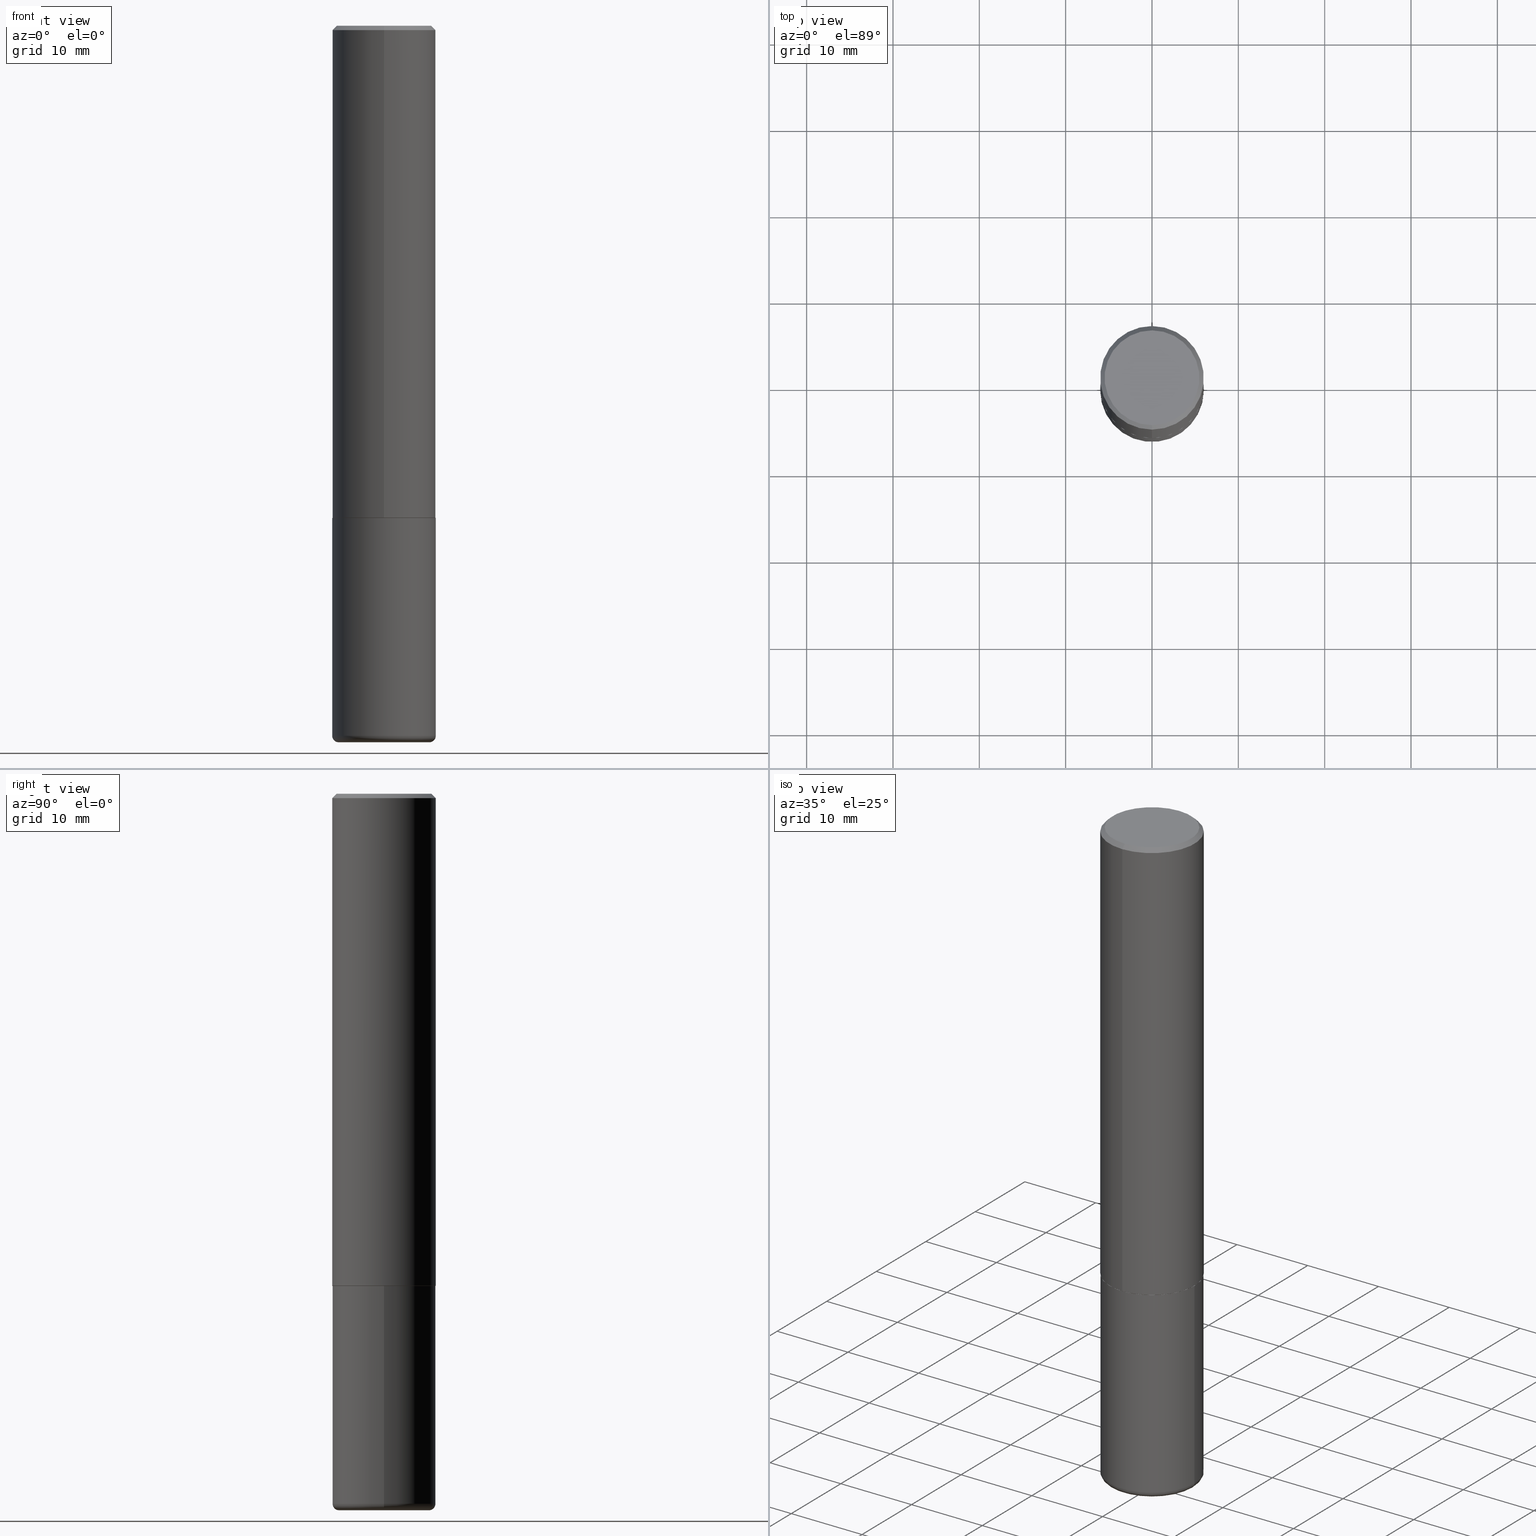
[diagram: canonical four-view strip — front | top / right | iso, engineering-drawing reading convention]
A machine part, canonical four-view strip (front | top / right | iso — engineering-drawing reading convention). The complete STEP part file that produces these views, byte-faithful:
ISO-10303-21;
HEADER;
FILE_DESCRIPTION (( 'STEP AP203' ),
    '1' );
FILE_NAME ('47162.STEP',
    '2024-03-06T00:16:44',
    ( '' ),
    ( '' ),
    'SwSTEP 2.0',
    'SolidWorks 2023',
    '' );
FILE_SCHEMA (( 'CONFIG_CONTROL_DESIGN' ));
ENDSEC;

DATA;
#1 = EDGE_LOOP ( 'NONE', ( #388, #287, #348, #351 ) ) ;
#2 = PERSON_AND_ORGANIZATION ( #316, #331 ) ;
#3 = DIRECTION ( 'NONE',  ( -2.445468806185136877E-29, 3.491481338843145188E-15, 1.000000000000000000 ) ) ;
#4 = CALENDAR_DATE ( 2024, 5, 3 ) ;
#5 = DIRECTION ( 'NONE',  ( -2.443198551934710321E-29, 3.494732472144603410E-15, 1.000000000000000000 ) ) ;
#6 = DATE_AND_TIME ( #36, #353 ) ;
#7 = LINE ( 'NONE', #108, #51 ) ;
#8 = CIRCLE ( 'NONE', #176, 0.2062000000000000222 ) ;
#9 = APPLICATION_CONTEXT ( 'configuration controlled 3d designs of mechanical parts and assemblies' ) ;
#10 = DATE_AND_TIME ( #4, #299 ) ;
#11 = CARTESIAN_POINT ( 'NONE',  ( 5.482781870396684000E-29, -7.842529140739704038E-15, -2.244100000000000428 ) ) ;
#12 = PERSON_AND_ORGANIZATION ( #316, #331 ) ;
#13 = CARTESIAN_POINT ( 'NONE',  ( 1.678301941865357380E-15, 0.2362000000000001321, -8.254558099205557624E-16 ) ) ;
#14 = EDGE_CURVE ( 'NONE', #25, #315, #73, .T. ) ;
#15 = DIRECTION ( 'NONE',  ( -4.937700262164969294E-15, -0.7071067811866054154, 0.7071067811864896191 ) ) ;
#16 = CC_DESIGN_PERSON_AND_ORGANIZATION_ASSIGNMENT ( #12, #295, ( #153 ) ) ;
#17 = LOCAL_TIME ( 19, 16, 44.00000000000000000, #156 ) ;
#18 = CARTESIAN_POINT ( 'NONE',  ( -0.2362000000000000766, -7.891499259769821311E-15, -2.244100000000000428 ) ) ;
#19 = CARTESIAN_POINT ( 'NONE',  ( 1.671196514507810409E-15, 0.2351999999999921653, -2.244100000000000872 ) ) ;
#20 = APPROVAL ( #356, 'UNSPECIFIED' ) ;
#21 = LINE ( 'NONE', #19, #382 ) ;
#22 = CARTESIAN_POINT ( 'NONE',  ( 5.487876547960065873E-29, -7.835233272497903917E-15, -2.244100000000000428 ) ) ;
#23 = AXIS2_PLACEMENT_3D ( 'NONE', #317, #31, #290 ) ;
#24 = PERSON_AND_ORGANIZATION ( #316, #331 ) ;
#25 = VERTEX_POINT ( 'NONE', #231 ) ;
#26 = EDGE_CURVE ( 'NONE', #291, #218, #333, .T. ) ;
#27 = ORIENTED_EDGE ( 'NONE', *, *, #327, .T. ) ;
#28 = CIRCLE ( 'NONE', #305, 0.2362000000000002709 ) ;
#29 = VECTOR ( 'NONE', #15, 39.37007874015748143 ) ;
#30 = ORIENTED_EDGE ( 'NONE', *, *, #40, .T. ) ;
#31 = DIRECTION ( 'NONE',  ( 0.000000000000000000, 0.000000000000000000, 1.000000000000000000 ) ) ;
#32 = ORIENTED_EDGE ( 'NONE', *, *, #161, .T. ) ;
#33 = EDGE_LOOP ( 'NONE', ( #215, #166, #321, #165 ) ) ;
#34 = CIRCLE ( 'NONE', #407, 0.2361999999999999933 ) ;
#35 = CC_DESIGN_APPROVAL ( #88, ( #313 ) ) ;
#36 = CALENDAR_DATE ( 2024, 5, 3 ) ;
#37 = DIRECTION ( 'NONE',  ( 1.000000000000000000, -6.982962677686265133E-15, 4.883557194083111780E-29 ) ) ;
#38 = DIRECTION ( 'NONE',  ( -2.443198551934710321E-29, 3.494732472144603410E-15, 1.000000000000000000 ) ) ;
#39 = CYLINDRICAL_SURFACE ( 'NONE', #304, 0.2362000000000001321 ) ;
#40 = EDGE_CURVE ( 'NONE', #198, #291, #175, .T. ) ;
#41 = DIRECTION ( 'NONE',  ( 7.105427357601001859E-15, 1.000000000000000000, -3.491481338843145583E-15 ) ) ;
#42 = EDGE_CURVE ( 'NONE', #349, #291, #345, .T. ) ;
#43 = LINE ( 'NONE', #13, #90 ) ;
#44 = DIRECTION ( 'NONE',  ( 1.000000000000000000, -6.982962677686265133E-15, 4.883557194083111780E-29 ) ) ;
#45 = AXIS2_PLACEMENT_3D ( 'NONE', #93, #191, #360 ) ;
#46 = CYLINDRICAL_SURFACE ( 'NONE', #260, 0.2361999999999999933 ) ;
#47 = EDGE_CURVE ( 'NONE', #315, #411, #43, .T. ) ;
#48 = DIRECTION ( 'NONE',  ( -2.443198551934710321E-29, 3.494732472144603016E-15, 1.000000000000000000 ) ) ;
#49 = CARTESIAN_POINT ( 'NONE',  ( 1.678301941865385582E-15, 0.2361999999999924160, -2.243100000000000982 ) ) ;
#50 =( NAMED_UNIT ( * ) PLANE_ANGLE_UNIT ( ) SI_UNIT ( $, .RADIAN. ) );
#51 = VECTOR ( 'NONE', #268, 39.37007874015748143 ) ;
#52 = ORIENTED_EDGE ( 'NONE', *, *, #130, .F. ) ;
#53 = CARTESIAN_POINT ( 'NONE',  ( 1.509716530915772690E-15, 0.2162000000000002808, -9.024733938762408486E-16 ) ) ;
#54 = ADVANCED_FACE ( 'NONE', ( #238 ), #134, .T. ) ;
#55 = ORIENTED_EDGE ( 'NONE', *, *, #14, .F. ) ;
#56 = DIRECTION ( 'NONE',  ( -1.000000000000000000, 6.982962677686265922E-15, -4.876176775795935793E-29 ) ) ;
#57 = EDGE_LOOP ( 'NONE', ( #255, #52 ) ) ;
#58 = LENGTH_MEASURE_WITH_UNIT ( LENGTH_MEASURE( 0.02539999999999999897 ), #350 );
#59 = EDGE_LOOP ( 'NONE', ( #323, #344, #416, #95 ) ) ;
#60 = CIRCLE ( 'NONE', #234, 0.2362000000000000210 ) ;
#61 = APPROVAL_PERSON_ORGANIZATION ( #330, #74, #137 ) ;
#62 = PERSON_AND_ORGANIZATION ( #316, #331 ) ;
#63 = EDGE_LOOP ( 'NONE', ( #335, #64, #381, #129 ) ) ;
#64 = ORIENTED_EDGE ( 'NONE', *, *, #26, .T. ) ;
#65 = CARTESIAN_POINT ( 'NONE',  ( -0.2062000000000000222, -9.839230009635125344E-15, -3.237700000000000244 ) ) ;
#66 = CIRCLE ( 'NONE', #127, 0.2062000000000000222 ) ;
#67 = VECTOR ( 'NONE', #123, 39.37007874015748143 ) ;
#68 = CYLINDRICAL_SURFACE ( 'NONE', #292, 0.2362000000000001321 ) ;
#69 = ADVANCED_FACE ( 'NONE', ( #205 ), #225, .T. ) ;
#70 = APPROVAL_STATUS ( 'not_yet_approved' ) ;
#71 = FACE_OUTER_BOUND ( 'NONE', #160, .T. ) ;
#72 = CARTESIAN_POINT ( 'NONE',  ( 7.917694353785617077E-29, -1.130436913077245307E-14, -3.237700000000000244 ) ) ;
#73 = CIRCLE ( 'NONE', #45, 0.2362000000000002709 ) ;
#74 = APPROVAL ( #70, 'UNSPECIFIED' ) ;
#75 = TOROIDAL_SURFACE ( 'NONE', #149, 0.2062000000000000222, 0.03000000000000024175 ) ;
#76 = DIRECTION ( 'NONE',  ( 6.982962677686265922E-15, 1.000000000000000000, -3.487819265831411744E-15 ) ) ;
#77 = CARTESIAN_POINT ( 'NONE',  ( 7.991058417971172834E-29, -1.140911357093774960E-14, -3.267700000000000937 ) ) ;
#78 = DESIGN_CONTEXT ( 'detailed design', #178, 'design' ) ;
#79 = DIRECTION ( 'NONE',  ( -2.445468806185136597E-29, 3.491481338843145583E-15, 1.000000000000000000 ) ) ;
#80 = AXIS2_PLACEMENT_3D ( 'NONE', #120, #150, #184 ) ;
#81 = DIRECTION ( 'NONE',  ( 1.000000000000000000, -6.982962677686266711E-15, 4.876176775795936353E-29 ) ) ;
#82 = EDGE_CURVE ( 'NONE', #291, #349, #34, .T. ) ;
#83 = ORIENTED_EDGE ( 'NONE', *, *, #102, .T. ) ;
#84 = ADVANCED_BREP_SHAPE_REPRESENTATION ( '47162', ( #116, #122, #23 ), #98 ) ;
#85 = LINE ( 'NONE', #303, #376 ) ;
#86 = ADVANCED_FACE ( 'NONE', ( #364 ), #310, .T. ) ;
#87 = DIRECTION ( 'NONE',  ( -1.000000000000000000, 6.982962677686265922E-15, -4.876176775795935793E-29 ) ) ;
#88 = APPROVAL ( #254, 'UNSPECIFIED' ) ;
#89 = CALENDAR_DATE ( 2024, 5, 3 ) ;
#90 = VECTOR ( 'NONE', #142, 39.37007874015748143 ) ;
#91 = ORIENTED_EDGE ( 'NONE', *, *, #358, .T. ) ;
#92 = DATE_AND_TIME ( #256, #17 ) ;
#93 = CARTESIAN_POINT ( 'NONE',  ( 5.480338671844748839E-29, -7.839034408267561952E-15, -2.243100000000000094 ) ) ;
#94 = DIRECTION ( 'NONE',  ( -6.982962677686266711E-15, -1.000000000000000000, 3.491481338843145583E-15 ) ) ;
#95 = ORIENTED_EDGE ( 'NONE', *, *, #82, .F. ) ;
#96 = CARTESIAN_POINT ( 'NONE',  ( 1.649375784469496525E-15, 0.2361999999999999378, -0.02000000000000091288 ) ) ;
#97 = ORIENTED_EDGE ( 'NONE', *, *, #47, .F. ) ;
#98 =( GEOMETRIC_REPRESENTATION_CONTEXT ( 3 ) GLOBAL_UNCERTAINTY_ASSIGNED_CONTEXT ( ( #253 ) ) GLOBAL_UNIT_ASSIGNED_CONTEXT ( ( #412, #50, #192 ) ) REPRESENTATION_CONTEXT ( 'NONE', 'WORKASPACE' ) );
#99 = FACE_OUTER_BOUND ( 'NONE', #324, .T. ) ;
#100 = VERTEX_POINT ( 'NONE', #177 ) ;
#101 = DIRECTION ( 'NONE',  ( -2.443198551934710321E-29, 3.494732472144603410E-15, 1.000000000000000000 ) ) ;
#102 = EDGE_CURVE ( 'NONE', #374, #218, #367, .T. ) ;
#103 = DIRECTION ( 'NONE',  ( -6.982962677686265922E-15, -1.000000000000000000, 3.484499991918702719E-15 ) ) ;
#104 = AXIS2_PLACEMENT_3D ( 'NONE', #270, #237, #76 ) ;
#105 = LOCAL_TIME ( 19, 16, 44.00000000000000000, #195 ) ;
#106 = PRODUCT_DEFINITION_SHAPE ( 'NONE', 'NONE',  #313 ) ;
#107 = DATE_AND_TIME ( #271, #206 ) ;
#108 = CARTESIAN_POINT ( 'NONE',  ( -1.620449627073635079E-15, -0.2362000000000000766, -0.01999999999999926489 ) ) ;
#109 = FACE_OUTER_BOUND ( 'NONE', #227, .T. ) ;
#110 = EDGE_CURVE ( 'NONE', #100, #285, #148, .T. ) ;
#111 = PERSON_AND_ORGANIZATION ( #316, #331 ) ;
#112 = AXIS2_PLACEMENT_3D ( 'NONE', #263, #393, #37 ) ;
#113 = CIRCLE ( 'NONE', #226, 0.2162000000000002808 ) ;
#114 = DIRECTION ( 'NONE',  ( -2.443198551934710321E-29, 3.494732472144603410E-15, 1.000000000000000000 ) ) ;
#115 = FACE_OUTER_BOUND ( 'NONE', #289, .T. ) ;
#116 = MANIFOLD_SOLID_BREP ( 'Body-Move/Copy2[1]', #213 ) ;
#117 = ADVANCED_FACE ( 'NONE', ( #71 ), #39, .T. ) ;
#118 = DIRECTION ( 'NONE',  ( -2.443198551934710321E-29, 3.494732472144603410E-15, 1.000000000000000000 ) ) ;
#119 = AXIS2_PLACEMENT_3D ( 'NONE', #53, #322, #229 ) ;
#120 = CARTESIAN_POINT ( 'NONE',  ( 4.886397103869442398E-31, -6.989464944289237832E-17, -0.02000000000000009062 ) ) ;
#121 = ORIENTED_EDGE ( 'NONE', *, *, #167, .F. ) ;
#122 = MANIFOLD_SOLID_BREP ( 'Body-Move/Copy2[2]', #414 ) ;
#123 = DIRECTION ( 'NONE',  ( -2.443198551934710321E-29, 3.494732472144603016E-15, 1.000000000000000000 ) ) ;
#124 = PRODUCT_RELATED_PRODUCT_CATEGORY ( 'detail', '', ( #273 ) ) ;
#125 = DIRECTION ( 'NONE',  ( -2.443198551934710321E-29, 3.494732472144603410E-15, 1.000000000000000000 ) ) ;
#126 = ORIENTED_EDGE ( 'NONE', *, *, #236, .T. ) ;
#127 = AXIS2_PLACEMENT_3D ( 'NONE', #272, #332, #400 ) ;
#128 = CIRCLE ( 'NONE', #136, 0.2361999999999999933 ) ;
#129 = ORIENTED_EDGE ( 'NONE', *, *, #300, .F. ) ;
#130 = EDGE_CURVE ( 'NONE', #198, #341, #66, .T. ) ;
#131 = ORIENTED_EDGE ( 'NONE', *, *, #14, .T. ) ;
#132 = APPROVAL_ROLE ( '' ) ;
#133 = EDGE_LOOP ( 'NONE', ( #131, #257, #418, #384 ) ) ;
#134 = CONICAL_SURFACE ( 'NONE', #182, 0.2352000000000000202, 0.7853981633975336552 ) ;
#135 = ORIENTED_EDGE ( 'NONE', *, *, #110, .F. ) ;
#136 = AXIS2_PLACEMENT_3D ( 'NONE', #417, #125, #380 ) ;
#137 = APPROVAL_ROLE ( '' ) ;
#138 = DIRECTION ( 'NONE',  ( -2.445468806185136597E-29, 3.491481338843145583E-15, 1.000000000000000000 ) ) ;
#139 = EDGE_CURVE ( 'NONE', #163, #194, #401, .T. ) ;
#140 = APPROVAL_DATE_TIME ( #10, #74 ) ;
#141 = CARTESIAN_POINT ( 'NONE',  ( 7.917694353785617077E-29, -1.130436913077245307E-14, -3.237700000000000244 ) ) ;
#142 = DIRECTION ( 'NONE',  ( -2.443198551934710321E-29, 3.494732472144603016E-15, 1.000000000000000000 ) ) ;
#143 = AXIS2_PLACEMENT_3D ( 'NONE', #309, #279, #379 ) ;
#144 = DIRECTION ( 'NONE',  ( 4.937700262164537787E-15, 0.7071067811865436870, -0.7071067811865513475 ) ) ;
#145 = PERSON_AND_ORGANIZATION_ROLE ( 'design_supplier' ) ;
#146 = DIRECTION ( 'NONE',  ( -2.445468806185136597E-29, 3.491481338843145583E-15, 1.000000000000000000 ) ) ;
#147 = CARTESIAN_POINT ( 'NONE',  ( 5.482781870396684000E-29, -7.842529140739704038E-15, -2.244100000000000428 ) ) ;
#148 = CIRCLE ( 'NONE', #394, 0.2352000000000000202 ) ;
#149 = AXIS2_PLACEMENT_3D ( 'NONE', #72, #183, #44 ) ;
#150 = DIRECTION ( 'NONE',  ( -2.443198551934710321E-29, 3.494732472144603410E-15, 1.000000000000000000 ) ) ;
#151 = CARTESIAN_POINT ( 'NONE',  ( -1.649375784469496920E-15, -0.2362000000000001321, 8.254558099205557624E-16 ) ) ;
#152 = CARTESIAN_POINT ( 'NONE',  ( -1.620449627073635079E-15, -0.2362000000000000766, -0.01999999999999926489 ) ) ;
#153 = PRODUCT_DEFINITION_FORMATION_WITH_SPECIFIED_SOURCE ( 'ANY', '', #273, .NOT_KNOWN. ) ;
#154 = CARTESIAN_POINT ( 'NONE',  ( 0.2062000000000000222, -1.284900047507665623E-14, -3.267700000000000937 ) ) ;
#155 = ADVANCED_FACE ( 'NONE', ( #202 ), #68, .T. ) ;
#156 = COORDINATED_UNIVERSAL_TIME_OFFSET ( 5, 0, .BEHIND. ) ;
#157 = ORIENTED_EDGE ( 'NONE', *, *, #378, .F. ) ;
#158 = CARTESIAN_POINT ( 'NONE',  ( 0.2062000000000000222, -1.274425603491136128E-14, -3.237700000000000244 ) ) ;
#159 = APPROVAL_PERSON_ORGANIZATION ( #359, #20, #199 ) ;
#160 = EDGE_LOOP ( 'NONE', ( #97, #371, #357, #157 ) ) ;
#161 = EDGE_CURVE ( 'NONE', #194, #249, #7, .T. ) ;
#162 = DIRECTION ( 'NONE',  ( -6.982962677686265922E-15, -1.000000000000000000, 3.484499991918702719E-15 ) ) ;
#163 = VERTEX_POINT ( 'NONE', #399 ) ;
#164 = PERSON_AND_ORGANIZATION ( #316, #331 ) ;
#165 = ORIENTED_EDGE ( 'NONE', *, *, #378, .T. ) ;
#166 = ORIENTED_EDGE ( 'NONE', *, *, #139, .F. ) ;
#167 = EDGE_CURVE ( 'NONE', #163, #411, #174, .T. ) ;
#168 = AXIS2_PLACEMENT_3D ( 'NONE', #340, #334, #214 ) ;
#169 = COORDINATED_UNIVERSAL_TIME_OFFSET ( 5, 0, .BEHIND. ) ;
#170 = CARTESIAN_POINT ( 'NONE',  ( 5.487876547960065873E-29, -7.835233272497903917E-15, -2.244100000000000428 ) ) ;
#171 = APPROVAL_DATE_TIME ( #107, #20 ) ;
#172 = DIRECTION ( 'NONE',  ( -2.445468806185136597E-29, 3.491481338843145583E-15, 1.000000000000000000 ) ) ;
#173 = SECURITY_CLASSIFICATION_LEVEL ( 'unclassified' ) ;
#174 = LINE ( 'NONE', #298, #396 ) ;
#175 = CIRCLE ( 'NONE', #361, 0.03000000000000025910 ) ;
#176 = AXIS2_PLACEMENT_3D ( 'NONE', #77, #308, #370 ) ;
#177 = CARTESIAN_POINT ( 'NONE',  ( 1.674749228186611702E-15, 0.2351999999999921653, -2.244100000000000872 ) ) ;
#178 = APPLICATION_CONTEXT ( 'configuration controlled 3d designs of mechanical parts and assemblies' ) ;
#179 = DIRECTION ( 'NONE',  ( -6.982962677686265922E-15, -1.000000000000000000, 3.494732472144603016E-15 ) ) ;
#180 = DIRECTION ( 'NONE',  ( -6.982962677686265922E-15, -1.000000000000000000, 3.469747663417773058E-15 ) ) ;
#181 = ADVANCED_FACE ( 'NONE', ( #109 ), #75, .T. ) ;
#182 = AXIS2_PLACEMENT_3D ( 'NONE', #11, #201, #103 ) ;
#183 = DIRECTION ( 'NONE',  ( -2.445468806185136597E-29, 3.491481338843145583E-15, 1.000000000000000000 ) ) ;
#184 = DIRECTION ( 'NONE',  ( -6.982962677686265922E-15, -1.000000000000000000, 3.487819265831411744E-15 ) ) ;
#185 = EDGE_CURVE ( 'NONE', #194, #163, #113, .T. ) ;
#186 = DIRECTION ( 'NONE',  ( -2.445468806185136877E-29, 3.491481338843145188E-15, 1.000000000000000000 ) ) ;
#187 = AXIS2_PLACEMENT_3D ( 'NONE', #141, #138, #369 ) ;
#188 = ORIENTED_EDGE ( 'NONE', *, *, #250, .F. ) ;
#189 = EDGE_LOOP ( 'NONE', ( #252, #390, #318, #188 ) ) ;
#190 = APPLICATION_PROTOCOL_DEFINITION ( 'international standard', 'config_control_design', 1994, #9 ) ;
#191 = DIRECTION ( 'NONE',  ( -2.443198551934710321E-29, 3.494732472144603410E-15, 1.000000000000000000 ) ) ;
#192 =( NAMED_UNIT ( * ) SI_UNIT ( $, .STERADIAN. ) SOLID_ANGLE_UNIT ( ) );
#193 = AXIS2_PLACEMENT_3D ( 'NONE', #242, #373, #87 ) ;
#194 = VERTEX_POINT ( 'NONE', #336 ) ;
#195 = COORDINATED_UNIVERSAL_TIME_OFFSET ( 5, 0, .BEHIND. ) ;
#196 = ORIENTED_EDGE ( 'NONE', *, *, #391, .F. ) ;
#197 = CC_DESIGN_PERSON_AND_ORGANIZATION_ASSIGNMENT ( #2, #145, ( #153 ) ) ;
#198 = VERTEX_POINT ( 'NONE', #377 ) ;
#199 = APPROVAL_ROLE ( '' ) ;
#200 = VECTOR ( 'NONE', #3, 39.37007874015748143 ) ;
#201 = DIRECTION ( 'NONE',  ( -2.443198551934710321E-29, 3.494732472144603410E-15, 1.000000000000000000 ) ) ;
#202 = FACE_OUTER_BOUND ( 'NONE', #133, .T. ) ;
#203 = DIRECTION ( 'NONE',  ( 1.000000000000000000, -6.982962677686265133E-15, 0.000000000000000000 ) ) ;
#204 = DATE_TIME_ROLE ( 'creation_date' ) ;
#205 = FACE_OUTER_BOUND ( 'NONE', #224, .T. ) ;
#206 = LOCAL_TIME ( 19, 16, 44.00000000000000000, #269 ) ;
#207 = DIRECTION ( 'NONE',  ( -6.982962677686265922E-15, -1.000000000000000000, 3.494732472144603410E-15 ) ) ;
#208 = EDGE_CURVE ( 'NONE', #100, #315, #21, .T. ) ;
#209 = CARTESIAN_POINT ( 'NONE',  ( 0.000000000000000000, 0.000000000000000000, 0.000000000000000000 ) ) ;
#210 = ORIENTED_EDGE ( 'NONE', *, *, #42, .F. ) ;
#211 = DIMENSIONAL_EXPONENTS ( 1.000000000000000000, 0.000000000000000000, 0.000000000000000000, 0.000000000000000000, 0.000000000000000000, 0.000000000000000000, 0.000000000000000000 ) ;
#212 = PLANE ( 'NONE',  #368 ) ;
#213 = CLOSED_SHELL ( 'NONE', ( #240, #181, #307, #286, #86, #365 ) ) ;
#214 = DIRECTION ( 'NONE',  ( 1.000000000000000000, -6.982962677686266711E-15, 4.876176775795936353E-29 ) ) ;
#215 = ORIENTED_EDGE ( 'NONE', *, *, #161, .F. ) ;
#216 = PLANE ( 'NONE',  #193 ) ;
#217 = DIRECTION ( 'NONE',  ( 5.024295867788490741E-15, 0.7071067811866103003, 0.7071067811864847341 ) ) ;
#218 = VERTEX_POINT ( 'NONE', #18 ) ;
#219 = AXIS2_PLACEMENT_3D ( 'NONE', #147, #275, #347 ) ;
#220 = DATE_AND_TIME ( #89, #105 ) ;
#221 = ORIENTED_EDGE ( 'NONE', *, *, #342, .F. ) ;
#222 = PLANE ( 'NONE',  #119 ) ;
#223 = ORIENTED_EDGE ( 'NONE', *, *, #358, .F. ) ;
#224 = EDGE_LOOP ( 'NONE', ( #243, #32, #230, #121 ) ) ;
#225 = CONICAL_SURFACE ( 'NONE', #104, 0.2361999999999999933, 0.7853981633974463916 ) ;
#226 = AXIS2_PLACEMENT_3D ( 'NONE', #366, #114, #405 ) ;
#227 = EDGE_LOOP ( 'NONE', ( #126, #30, #210, #196 ) ) ;
#228 = CC_DESIGN_PERSON_AND_ORGANIZATION_ASSIGNMENT ( #164, #320, ( #273 ) ) ;
#229 = DIRECTION ( 'NONE',  ( 6.982962677686265922E-15, 1.000000000000000000, -3.494732472144603016E-15 ) ) ;
#230 = ORIENTED_EDGE ( 'NONE', *, *, #258, .T. ) ;
#231 = CARTESIAN_POINT ( 'NONE',  ( -1.649375784469443080E-15, -0.2362000000000081257, -2.243099999999999206 ) ) ;
#232 = EDGE_CURVE ( 'NONE', #25, #249, #241, .T. ) ;
#233 = CARTESIAN_POINT ( 'NONE',  ( 7.178715118017931868E-45, -1.026837905226585320E-30, -2.938244667971532280E-16 ) ) ;
#234 = AXIS2_PLACEMENT_3D ( 'NONE', #22, #79, #343 ) ;
#235 = CARTESIAN_POINT ( 'NONE',  ( -0.2361999999999999933, 1.678301941865356591E-15, -1.161852468318208757E-29 ) ) ;
#236 = EDGE_CURVE ( 'NONE', #341, #198, #8, .T. ) ;
#237 = DIRECTION ( 'NONE',  ( 2.443198551934710321E-29, -3.494732472144603410E-15, -1.000000000000000000 ) ) ;
#238 = FACE_OUTER_BOUND ( 'NONE', #262, .T. ) ;
#239 = AXIS2_PLACEMENT_3D ( 'NONE', #233, #363, #207 ) ;
#240 = ADVANCED_FACE ( 'NONE', ( #244 ), #46, .T. ) ;
#241 = LINE ( 'NONE', #151, #67 ) ;
#242 = CARTESIAN_POINT ( 'NONE',  ( 5.487876547960065873E-29, -7.835233272497903917E-15, -2.244100000000000428 ) ) ;
#243 = ORIENTED_EDGE ( 'NONE', *, *, #185, .F. ) ;
#244 = FACE_OUTER_BOUND ( 'NONE', #63, .T. ) ;
#245 = CIRCLE ( 'NONE', #280, 0.2352000000000000202 ) ;
#246 = CARTESIAN_POINT ( 'NONE',  ( -1.642392821791755093E-15, -0.2352000000000078750, -2.244099999999999540 ) ) ;
#247 = FACE_OUTER_BOUND ( 'NONE', #33, .T. ) ;
#248 = MECHANICAL_CONTEXT ( 'NONE', #9, 'mechanical' ) ;
#249 = VERTEX_POINT ( 'NONE', #152 ) ;
#250 = EDGE_CURVE ( 'NONE', #315, #25, #28, .T. ) ;
#251 = APPLICATION_PROTOCOL_DEFINITION ( 'international standard', 'config_control_design', 1994, #178 ) ;
#252 = ORIENTED_EDGE ( 'NONE', *, *, #208, .F. ) ;
#253 = UNCERTAINTY_MEASURE_WITH_UNIT (LENGTH_MEASURE( 1.000000000000000082E-05 ), #412, 'distance_accuracy_value', 'NONE');
#254 = APPROVAL_STATUS ( 'not_yet_approved' ) ;
#255 = ORIENTED_EDGE ( 'NONE', *, *, #236, .F. ) ;
#256 = CALENDAR_DATE ( 2024, 5, 3 ) ;
#257 = ORIENTED_EDGE ( 'NONE', *, *, #47, .T. ) ;
#258 = EDGE_CURVE ( 'NONE', #249, #411, #267, .T. ) ;
#259 = CARTESIAN_POINT ( 'NONE',  ( 0.2362000000000000210, -9.484609056967400443E-15, -2.244100000000000428 ) ) ;
#260 = AXIS2_PLACEMENT_3D ( 'NONE', #209, #306, #81 ) ;
#261 = CC_DESIGN_APPROVAL ( #74, ( #415 ) ) ;
#262 = EDGE_LOOP ( 'NONE', ( #91, #386, #55, #221 ) ) ;
#263 = CARTESIAN_POINT ( 'NONE',  ( 7.917694353785617077E-29, -1.130436913077245307E-14, -3.237700000000000244 ) ) ;
#264 = DIRECTION ( 'NONE',  ( -6.982962677686265922E-15, -1.000000000000000000, 3.494732472144603410E-15 ) ) ;
#265 = ADVANCED_FACE ( 'NONE', ( #338 ), #212, .F. ) ;
#266 = COORDINATED_UNIVERSAL_TIME_OFFSET ( 5, 0, .BEHIND. ) ;
#267 = CIRCLE ( 'NONE', #80, 0.2361999999999999933 ) ;
#268 = DIRECTION ( 'NONE',  ( -4.851104656540954020E-15, -0.7071067811865485719, -0.7071067811865464625 ) ) ;
#269 = COORDINATED_UNIVERSAL_TIME_OFFSET ( 5, 0, .BEHIND. ) ;
#270 = CARTESIAN_POINT ( 'NONE',  ( 4.886397103869442398E-31, -6.989464944289237832E-17, -0.02000000000000009062 ) ) ;
#271 = CALENDAR_DATE ( 2024, 5, 3 ) ;
#272 = CARTESIAN_POINT ( 'NONE',  ( 7.991058417971172834E-29, -1.140911357093774960E-14, -3.267700000000000937 ) ) ;
#273 = PRODUCT ( '47162', '47162', '', ( #248 ) ) ;
#274 = CC_DESIGN_PERSON_AND_ORGANIZATION_ASSIGNMENT ( #62, #410, ( #313 ) ) ;
#275 = DIRECTION ( 'NONE',  ( -2.443198551934710321E-29, 3.494732472144603410E-15, 1.000000000000000000 ) ) ;
#276 = AXIS2_PLACEMENT_3D ( 'NONE', #158, #94, #389 ) ;
#277 = FACE_OUTER_BOUND ( 'NONE', #1, .T. ) ;
#278 = CARTESIAN_POINT ( 'NONE',  ( 5.480338671844748839E-29, -7.839034408267561952E-15, -2.243100000000000094 ) ) ;
#279 = DIRECTION ( 'NONE',  ( 2.443198551934710321E-29, -3.494732472144603410E-15, -1.000000000000000000 ) ) ;
#280 = AXIS2_PLACEMENT_3D ( 'NONE', #284, #385, #162 ) ;
#281 = LINE ( 'NONE', #302, #29 ) ;
#282 = CARTESIAN_POINT ( 'NONE',  ( 1.944896629755098043E-29, -2.006756137782106874E-14, -3.267700000000000937 ) ) ;
#283 = ADVANCED_FACE ( 'NONE', ( #247 ), #319, .T. ) ;
#284 = CARTESIAN_POINT ( 'NONE',  ( 5.482781870396684000E-29, -7.842529140739704038E-15, -2.244100000000000428 ) ) ;
#285 = VERTEX_POINT ( 'NONE', #246 ) ;
#286 = ADVANCED_FACE ( 'NONE', ( #277 ), #404, .T. ) ;
#287 = ORIENTED_EDGE ( 'NONE', *, *, #82, .T. ) ;
#288 = CC_DESIGN_DATE_AND_TIME_ASSIGNMENT ( #220, #204, ( #313 ) ) ;
#289 = EDGE_LOOP ( 'NONE', ( #83, #27 ) ) ;
#290 = DIRECTION ( 'NONE',  ( 1.000000000000000000, 0.000000000000000000, 0.000000000000000000 ) ) ;
#291 = VERTEX_POINT ( 'NONE', #406 ) ;
#292 = AXIS2_PLACEMENT_3D ( 'NONE', #328, #38, #296 ) ;
#293 = DIRECTION ( 'NONE',  ( -1.000000000000000000, 7.105427357600994759E-15, 0.000000000000000000 ) ) ;
#294 = CARTESIAN_POINT ( 'NONE',  ( 7.917694353785617077E-29, -1.130436913077245307E-14, -3.237700000000000244 ) ) ;
#295 = PERSON_AND_ORGANIZATION_ROLE ( 'creator' ) ;
#296 = DIRECTION ( 'NONE',  ( -6.982962677686265922E-15, -1.000000000000000000, 3.494732472144603410E-15 ) ) ;
#297 = CIRCLE ( 'NONE', #276, 0.03000000000000025910 ) ;
#298 = CARTESIAN_POINT ( 'NONE',  ( 1.649375784469496525E-15, 0.2361999999999999378, -0.02000000000000091288 ) ) ;
#299 = LOCAL_TIME ( 19, 16, 44.00000000000000000, #169 ) ;
#300 = EDGE_CURVE ( 'NONE', #349, #374, #85, .T. ) ;
#301 = CARTESIAN_POINT ( 'NONE',  ( 0.000000000000000000, 0.000000000000000000, 0.000000000000000000 ) ) ;
#302 = CARTESIAN_POINT ( 'NONE',  ( -1.642392821791755093E-15, -0.2352000000000078750, -2.244099999999999540 ) ) ;
#303 = CARTESIAN_POINT ( 'NONE',  ( 0.2361999999999999933, -1.649375784469496131E-15, 1.151752954443000088E-29 ) ) ;
#304 = AXIS2_PLACEMENT_3D ( 'NONE', #301, #5, #264 ) ;
#305 = AXIS2_PLACEMENT_3D ( 'NONE', #278, #118, #180 ) ;
#306 = DIRECTION ( 'NONE',  ( -2.445468806185136597E-29, 3.491481338843145583E-15, 1.000000000000000000 ) ) ;
#307 = ADVANCED_FACE ( 'NONE', ( #115 ), #216, .F. ) ;
#308 = DIRECTION ( 'NONE',  ( -2.445468806185136597E-29, 3.491481338843145583E-15, 1.000000000000000000 ) ) ;
#309 = CARTESIAN_POINT ( 'NONE',  ( 4.886397103869442398E-31, -6.989464944289237832E-17, -0.02000000000000009062 ) ) ;
#310 = TOROIDAL_SURFACE ( 'NONE', #112, 0.2062000000000000222, 0.03000000000000024175 ) ;
#311 = CC_DESIGN_APPROVAL ( #20, ( #153 ) ) ;
#312 = CC_DESIGN_SECURITY_CLASSIFICATION ( #415, ( #153 ) ) ;
#313 = PRODUCT_DEFINITION ( 'UNKNOWN', '', #153, #78 ) ;
#314 = FACE_OUTER_BOUND ( 'NONE', #57, .T. ) ;
#315 = VERTEX_POINT ( 'NONE', #49 ) ;
#316 = PERSON ( 'UNSPECIFIED', 'UNSPECIFIED', 'UNSPECIFIED', ('UNSPECIFIED'), ('UNSPECIFIED'), ('UNSPECIFIED') ) ;
#317 = CARTESIAN_POINT ( 'NONE',  ( 0.000000000000000000, 0.000000000000000000, 0.000000000000000000 ) ) ;
#318 = ORIENTED_EDGE ( 'NONE', *, *, #342, .T. ) ;
#319 = CONICAL_SURFACE ( 'NONE', #143, 0.2361999999999999933, 0.7853981633974463916 ) ;
#320 = PERSON_AND_ORGANIZATION_ROLE ( 'design_owner' ) ;
#321 = ORIENTED_EDGE ( 'NONE', *, *, #167, .T. ) ;
#322 = DIRECTION ( 'NONE',  ( 2.443198551934710321E-29, -3.494732472144603016E-15, -1.000000000000000000 ) ) ;
#323 = ORIENTED_EDGE ( 'NONE', *, *, #40, .F. ) ;
#324 = EDGE_LOOP ( 'NONE', ( #355, #339 ) ) ;
#325 = AXIS2_PLACEMENT_3D ( 'NONE', #170, #172, #329 ) ;
#326 = PERSON_AND_ORGANIZATION_ROLE ( 'classification_officer' ) ;
#327 = EDGE_CURVE ( 'NONE', #218, #374, #60, .T. ) ;
#328 = CARTESIAN_POINT ( 'NONE',  ( 0.000000000000000000, 0.000000000000000000, 0.000000000000000000 ) ) ;
#329 = DIRECTION ( 'NONE',  ( 1.000000000000000000, -6.982962677686268288E-15, 0.000000000000000000 ) ) ;
#330 = PERSON_AND_ORGANIZATION ( #316, #331 ) ;
#331 = ORGANIZATION ( 'UNSPECIFIED', 'UNSPECIFIED', '' ) ;
#332 = DIRECTION ( 'NONE',  ( -2.445468806185136597E-29, 3.491481338843145583E-15, 1.000000000000000000 ) ) ;
#333 = LINE ( 'NONE', #235, #200 ) ;
#334 = DIRECTION ( 'NONE',  ( -2.445468806185136597E-29, 3.491481338843145583E-15, 1.000000000000000000 ) ) ;
#335 = ORIENTED_EDGE ( 'NONE', *, *, #42, .T. ) ;
#336 = CARTESIAN_POINT ( 'NONE',  ( -1.551844647095920733E-15, -0.2162000000000002808, 4.617366936805109079E-16 ) ) ;
#337 = AXIS2_PLACEMENT_3D ( 'NONE', #282, #383, #56 ) ;
#338 = FACE_OUTER_BOUND ( 'NONE', #413, .T. ) ;
#339 = ORIENTED_EDGE ( 'NONE', *, *, #185, .T. ) ;
#340 = CARTESIAN_POINT ( 'NONE',  ( 0.000000000000000000, 0.000000000000000000, 0.000000000000000000 ) ) ;
#341 = VERTEX_POINT ( 'NONE', #154 ) ;
#342 = EDGE_CURVE ( 'NONE', #285, #25, #281, .T. ) ;
#343 = DIRECTION ( 'NONE',  ( 1.000000000000000000, -6.982962677686268288E-15, 0.000000000000000000 ) ) ;
#344 = ORIENTED_EDGE ( 'NONE', *, *, #130, .T. ) ;
#345 = CIRCLE ( 'NONE', #187, 0.2361999999999999933 ) ;
#346 = CONICAL_SURFACE ( 'NONE', #219, 0.2352000000000000202, 0.7853981633975336552 ) ;
#347 = DIRECTION ( 'NONE',  ( -6.982962677686265922E-15, -1.000000000000000000, 3.484499991918702719E-15 ) ) ;
#348 = ORIENTED_EDGE ( 'NONE', *, *, #300, .T. ) ;
#349 = VERTEX_POINT ( 'NONE', #409 ) ;
#350 =( LENGTH_UNIT ( ) NAMED_UNIT ( * ) SI_UNIT ( $, .METRE. ) );
#351 = ORIENTED_EDGE ( 'NONE', *, *, #327, .F. ) ;
#352 = ADVANCED_FACE ( 'NONE', ( #402 ), #346, .T. ) ;
#353 = LOCAL_TIME ( 19, 16, 44.00000000000000000, #266 ) ;
#354 = APPROVAL_DATE_TIME ( #92, #88 ) ;
#355 = ORIENTED_EDGE ( 'NONE', *, *, #139, .T. ) ;
#356 = APPROVAL_STATUS ( 'not_yet_approved' ) ;
#357 = ORIENTED_EDGE ( 'NONE', *, *, #232, .T. ) ;
#358 = EDGE_CURVE ( 'NONE', #285, #100, #245, .T. ) ;
#359 = PERSON_AND_ORGANIZATION ( #316, #331 ) ;
#360 = DIRECTION ( 'NONE',  ( -6.982962677686265922E-15, -1.000000000000000000, 3.469747663417773058E-15 ) ) ;
#361 = AXIS2_PLACEMENT_3D ( 'NONE', #65, #41, #293 ) ;
#362 = DATE_TIME_ROLE ( 'classification_date' ) ;
#363 = DIRECTION ( 'NONE',  ( -2.443198551934710321E-29, 3.494732472144603410E-15, 1.000000000000000000 ) ) ;
#364 = FACE_OUTER_BOUND ( 'NONE', #59, .T. ) ;
#365 = ADVANCED_FACE ( 'NONE', ( #314 ), #387, .T. ) ;
#366 = CARTESIAN_POINT ( 'NONE',  ( 7.178715118017931868E-45, -1.026837905226585320E-30, -2.938244667971532280E-16 ) ) ;
#367 = CIRCLE ( 'NONE', #325, 0.2362000000000000210 ) ;
#368 = AXIS2_PLACEMENT_3D ( 'NONE', #375, #48, #179 ) ;
#369 = DIRECTION ( 'NONE',  ( 1.000000000000000000, -6.982962677686265133E-15, 0.000000000000000000 ) ) ;
#370 = DIRECTION ( 'NONE',  ( 1.000000000000000000, -6.982962677686262766E-15, 0.000000000000000000 ) ) ;
#371 = ORIENTED_EDGE ( 'NONE', *, *, #250, .T. ) ;
#372 = CC_DESIGN_DATE_AND_TIME_ASSIGNMENT ( #6, #362, ( #415 ) ) ;
#373 = DIRECTION ( 'NONE',  ( 2.438088387897960049E-29, -3.491481338843145188E-15, -1.000000000000000000 ) ) ;
#374 = VERTEX_POINT ( 'NONE', #259 ) ;
#375 = CARTESIAN_POINT ( 'NONE',  ( 5.482781870396684000E-29, -7.842529140739704038E-15, -2.244100000000000428 ) ) ;
#376 = VECTOR ( 'NONE', #186, 39.37007874015748143 ) ;
#377 = CARTESIAN_POINT ( 'NONE',  ( -0.2062000000000000222, -9.785020819353759273E-15, -3.267700000000000937 ) ) ;
#378 = EDGE_CURVE ( 'NONE', #411, #249, #128, .T. ) ;
#379 = DIRECTION ( 'NONE',  ( 6.982962677686265922E-15, 1.000000000000000000, -3.487819265831411744E-15 ) ) ;
#380 = DIRECTION ( 'NONE',  ( -6.982962677686265922E-15, -1.000000000000000000, 3.487819265831411744E-15 ) ) ;
#381 = ORIENTED_EDGE ( 'NONE', *, *, #102, .F. ) ;
#382 = VECTOR ( 'NONE', #217, 39.37007874015748143 ) ;
#383 = DIRECTION ( 'NONE',  ( 2.438088387897960049E-29, -3.491481338843145188E-15, -1.000000000000000000 ) ) ;
#384 = ORIENTED_EDGE ( 'NONE', *, *, #232, .F. ) ;
#385 = DIRECTION ( 'NONE',  ( -2.443198551934710321E-29, 3.494732472144603410E-15, 1.000000000000000000 ) ) ;
#386 = ORIENTED_EDGE ( 'NONE', *, *, #208, .T. ) ;
#387 = PLANE ( 'NONE',  #337 ) ;
#388 = ORIENTED_EDGE ( 'NONE', *, *, #26, .F. ) ;
#389 = DIRECTION ( 'NONE',  ( 1.000000000000000000, -6.982962677686273021E-15, 0.000000000000000000 ) ) ;
#390 = ORIENTED_EDGE ( 'NONE', *, *, #110, .T. ) ;
#391 = EDGE_CURVE ( 'NONE', #341, #349, #297, .T. ) ;
#392 = CARTESIAN_POINT ( 'NONE',  ( 5.482781870396684000E-29, -7.842529140739704038E-15, -2.244100000000000428 ) ) ;
#393 = DIRECTION ( 'NONE',  ( -2.445468806185136597E-29, 3.491481338843145583E-15, 1.000000000000000000 ) ) ;
#394 = AXIS2_PLACEMENT_3D ( 'NONE', #392, #101, #398 ) ;
#395 = SHAPE_DEFINITION_REPRESENTATION ( #106, #84 ) ;
#396 = VECTOR ( 'NONE', #144, 39.37007874015748143 ) ;
#397 = ADVANCED_FACE ( 'NONE', ( #99 ), #222, .F. ) ;
#398 = DIRECTION ( 'NONE',  ( -6.982962677686265922E-15, -1.000000000000000000, 3.484499991918702719E-15 ) ) ;
#399 = CARTESIAN_POINT ( 'NONE',  ( 1.579546157692634608E-15, 0.2162000000000002808, -1.049385627274817561E-15 ) ) ;
#400 = DIRECTION ( 'NONE',  ( 1.000000000000000000, -6.982962677686262766E-15, 0.000000000000000000 ) ) ;
#401 = CIRCLE ( 'NONE', #239, 0.2162000000000002808 ) ;
#402 = FACE_OUTER_BOUND ( 'NONE', #189, .T. ) ;
#403 = CC_DESIGN_PERSON_AND_ORGANIZATION_ASSIGNMENT ( #111, #326, ( #415 ) ) ;
#404 = CYLINDRICAL_SURFACE ( 'NONE', #168, 0.2361999999999999933 ) ;
#405 = DIRECTION ( 'NONE',  ( -6.982962677686265922E-15, -1.000000000000000000, 3.494732472144603410E-15 ) ) ;
#406 = CARTESIAN_POINT ( 'NONE',  ( -0.2362000000000001321, -9.626067188907095099E-15, -3.237700000000000244 ) ) ;
#407 = AXIS2_PLACEMENT_3D ( 'NONE', #294, #146, #203 ) ;
#408 = APPROVAL_PERSON_ORGANIZATION ( #24, #88, #132 ) ;
#409 = CARTESIAN_POINT ( 'NONE',  ( 0.2362000000000001321, -1.295374491524195117E-14, -3.237700000000000244 ) ) ;
#410 = PERSON_AND_ORGANIZATION_ROLE ( 'creator' ) ;
#411 = VERTEX_POINT ( 'NONE', #96 ) ;
#412 =( CONVERSION_BASED_UNIT ( 'INCH', #58 ) LENGTH_UNIT ( ) NAMED_UNIT ( #211 ) );
#413 = EDGE_LOOP ( 'NONE', ( #223, #135 ) ) ;
#414 = CLOSED_SHELL ( 'NONE', ( #54, #155, #69, #283, #117, #352, #265, #397 ) ) ;
#415 = SECURITY_CLASSIFICATION ( '', '', #173 ) ;
#416 = ORIENTED_EDGE ( 'NONE', *, *, #391, .T. ) ;
#417 = CARTESIAN_POINT ( 'NONE',  ( 4.886397103869442398E-31, -6.989464944289237832E-17, -0.02000000000000009062 ) ) ;
#418 = ORIENTED_EDGE ( 'NONE', *, *, #258, .F. ) ;
ENDSEC;
END-ISO-10303-21;
